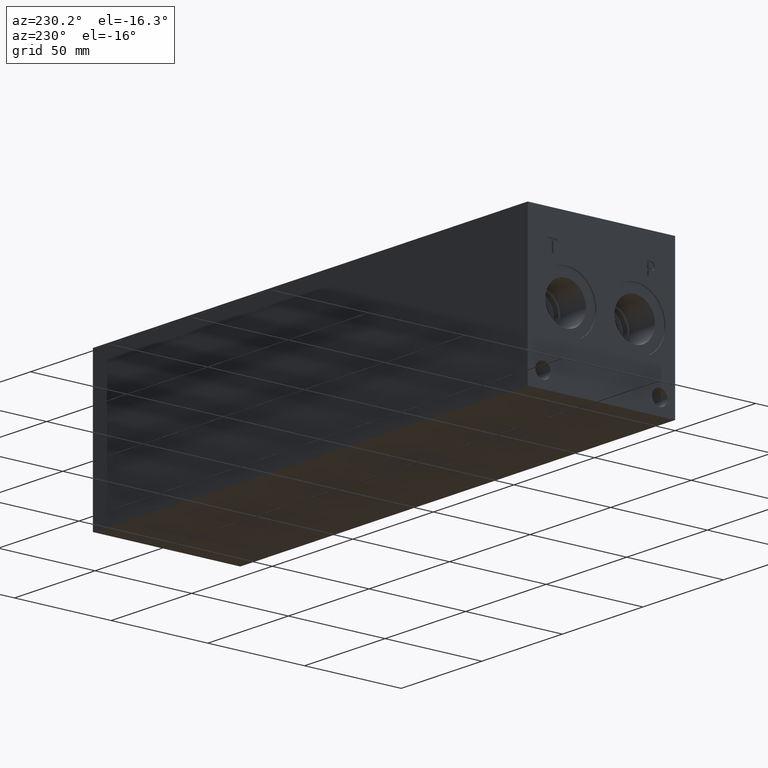
[diagram: clean part render]
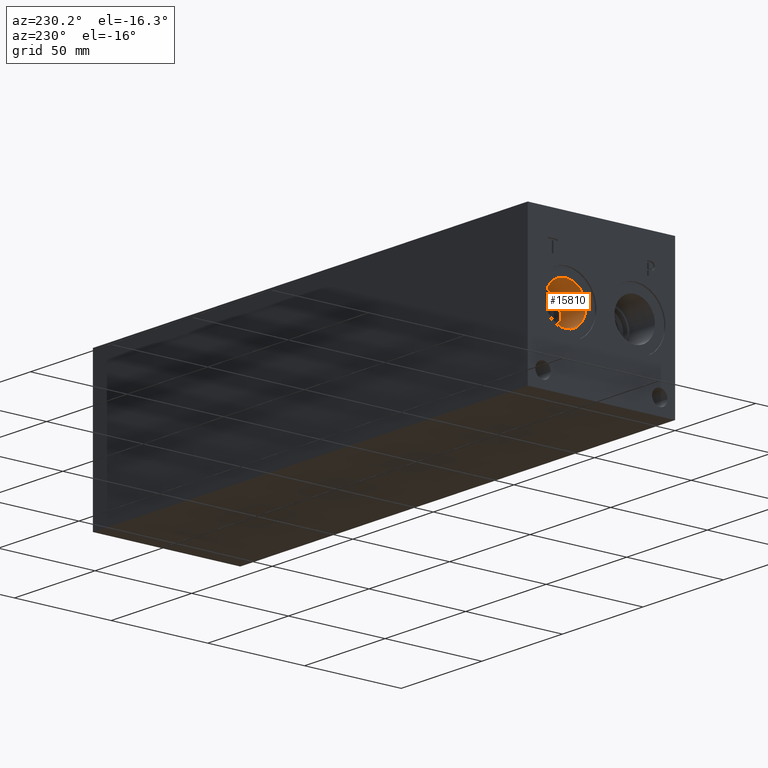
[diagram: same view with one face highlighted and labeled with its STEP entity id]
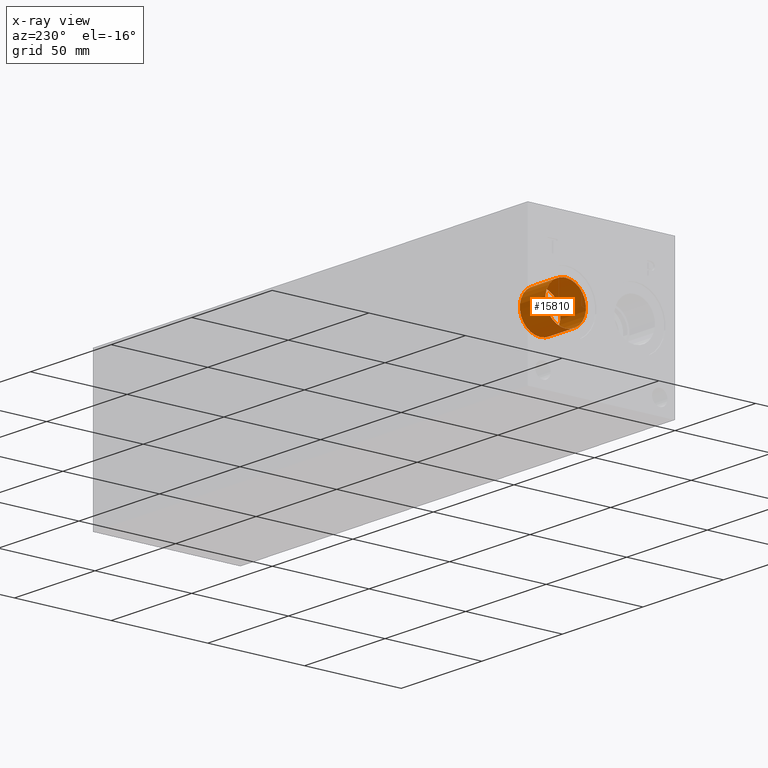
[diagram: x-ray of the same camera — body ghosted, the highlighted face saturated]
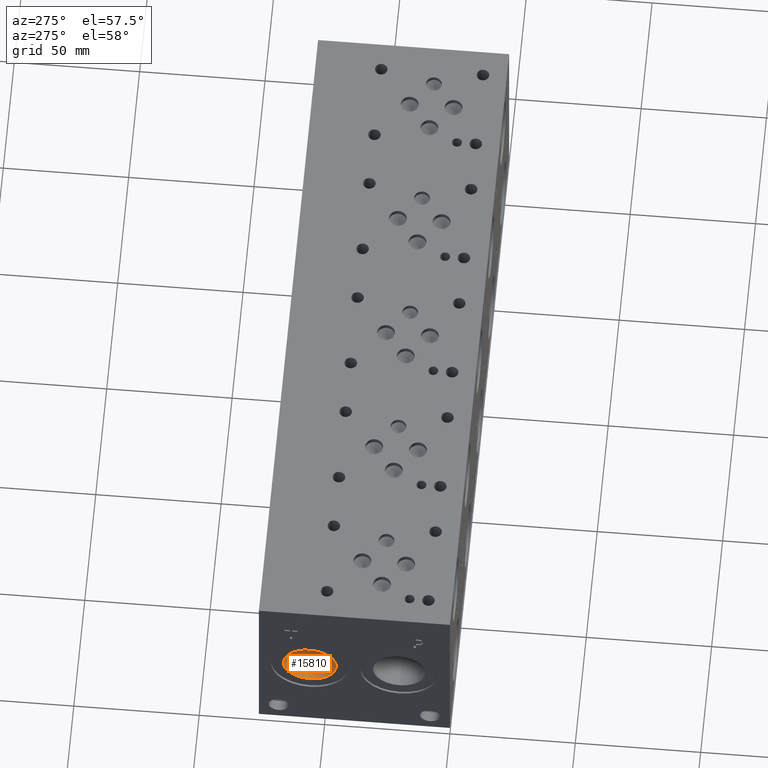
[diagram: same view with one face highlighted and labeled with its STEP entity id]
A machine part, auxiliary view. The second image highlights one B-rep face of the part: STEP entity #15810.
The next image is the same camera in x-ray: the body ghosted, the highlighted face saturated — about 0% of this face is hidden behind the body in this view.
A second angle (auxiliary view) of the same face is appended — the face is thin or edge-on in the first view.
In plain terms, the highlighted cylindrical surface (bore or boss wall) has radius 10.5283 mm, axis along (1, 0, 0).
Its self-contained STEP definition (entity closure, byte-faithful):
#36=CYLINDRICAL_SURFACE('',#16569,10.5283);
#324=CIRCLE('',#16567,10.5283);
#325=CIRCLE('',#16568,10.5283);
#326=CIRCLE('',#16570,10.5283);
#327=CIRCLE('',#16571,10.5283);
#1919=FACE_OUTER_BOUND('',#2837,.T.);
#2837=EDGE_LOOP('',(#13314,#13315,#13316,#13317,#13318,#13319));
#4325=LINE('',#26668,#5682);
#5682=VECTOR('',#19401,10.5283);
#7373=VERTEX_POINT('',#26662);
#7374=VERTEX_POINT('',#26663);
#7375=VERTEX_POINT('',#26667);
#7376=VERTEX_POINT('',#26669);
#9474=EDGE_CURVE('',#7373,#7374,#324,.T.);
#9475=EDGE_CURVE('',#7374,#7373,#325,.T.);
#9476=EDGE_CURVE('',#7374,#7375,#4325,.T.);
#9477=EDGE_CURVE('',#7375,#7376,#326,.T.);
#9478=EDGE_CURVE('',#7376,#7375,#327,.T.);
#13314=ORIENTED_EDGE('',*,*,#9474,.F.);
#13315=ORIENTED_EDGE('',*,*,#9475,.F.);
#13316=ORIENTED_EDGE('',*,*,#9476,.T.);
#13317=ORIENTED_EDGE('',*,*,#9477,.T.);
#13318=ORIENTED_EDGE('',*,*,#9478,.T.);
#13319=ORIENTED_EDGE('',*,*,#9476,.F.);
#15810=ADVANCED_FACE('',(#1919),#36,.F.);
#16567=AXIS2_PLACEMENT_3D('',#26664,#19395,#19396);
#16568=AXIS2_PLACEMENT_3D('',#26665,#19397,#19398);
#16569=AXIS2_PLACEMENT_3D('',#26666,#19399,#19400);
#16570=AXIS2_PLACEMENT_3D('',#26670,#19402,#19403);
#16571=AXIS2_PLACEMENT_3D('',#26671,#19404,#19405);
#19395=DIRECTION('center_axis',(1.,0.,0.));
#19396=DIRECTION('ref_axis',(0.,0.,-1.));
#19397=DIRECTION('center_axis',(1.,0.,0.));
#19398=DIRECTION('ref_axis',(0.,0.,-1.));
#19399=DIRECTION('center_axis',(1.,0.,0.));
#19400=DIRECTION('ref_axis',(0.,0.,1.));
#19401=DIRECTION('',(1.,0.,0.));
#19402=DIRECTION('center_axis',(1.,0.,0.));
#19403=DIRECTION('ref_axis',(0.,0.,-1.));
#19404=DIRECTION('center_axis',(1.,0.,0.));
#19405=DIRECTION('ref_axis',(0.,0.,-1.));
#26662=CARTESIAN_POINT('',(0.7874,55.9562,48.6283));
#26663=CARTESIAN_POINT('',(0.7874,55.9562,27.5717));
#26664=CARTESIAN_POINT('Origin',(0.7874,55.9562,38.1));
#26665=CARTESIAN_POINT('Origin',(0.7874,55.9562,38.1));
#26666=CARTESIAN_POINT('Origin',(8.6868,55.9562,38.1));
#26667=CARTESIAN_POINT('',(16.5862,55.9562,27.5717));
#26668=CARTESIAN_POINT('',(8.6868,55.9562,27.5717));
#26669=CARTESIAN_POINT('',(16.5862,55.9562,48.6283));
#26670=CARTESIAN_POINT('Origin',(16.5862,55.9562,38.1));
#26671=CARTESIAN_POINT('Origin',(16.5862,55.9562,38.1));